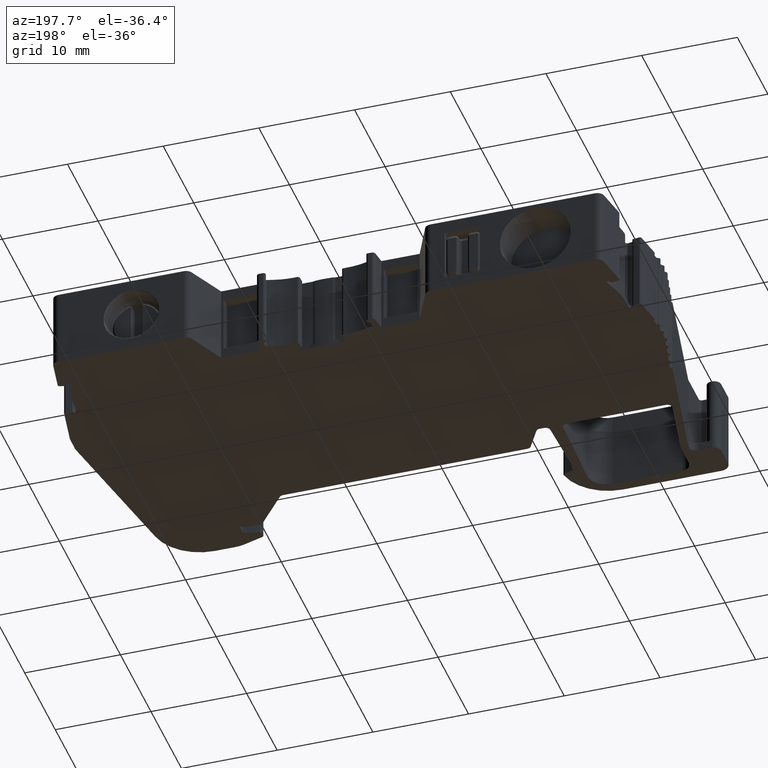
[diagram: clean part render]
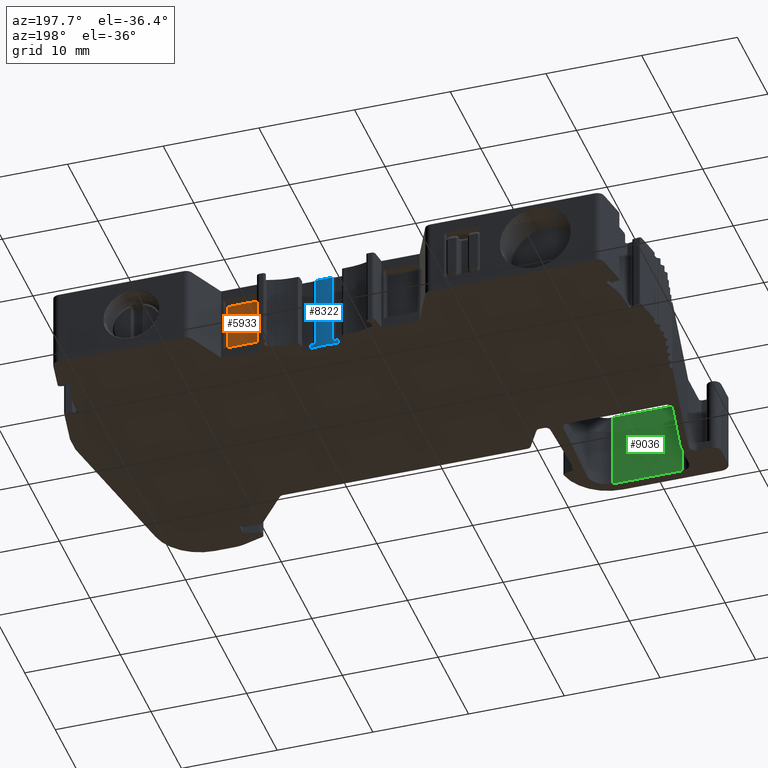
[diagram: same view with three faces highlighted in distinct colors, each labeled with its STEP entity id]
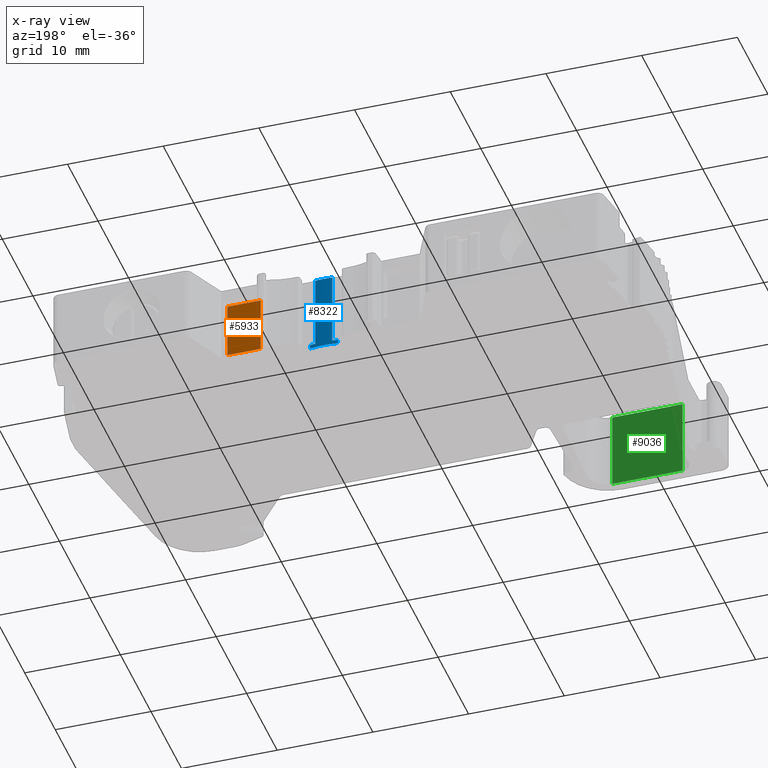
[diagram: x-ray of the same camera — body ghosted, the three highlighted faces saturated]
A machine part, auxiliary view with three faces highlighted in distinct colors.
The next image is the same camera in x-ray (body ghosted, the three faces saturated) — at least one of them is partly hidden behind the body in this view.
Their STEP definitions:

[orange] entity #5933 — the highlighted planar face has unit normal (0, 1, 0).
#602 = EDGE_CURVE ( 'NONE', #7787, #1837, #10320, .T. ) ;
#727 = CARTESIAN_POINT ( 'NONE',  ( -164.5061597319889870, 91.79790208512669381, 7.100000000000000533 ) ) ;
#1837 = VERTEX_POINT ( 'NONE', #3306 ) ;
#2060 = CARTESIAN_POINT ( 'NONE',  ( -168.0027234624745063, 91.79790208512669381, 0.6500000000000000222 ) ) ;
#2068 = VECTOR ( 'NONE', #9424, 1000.000000000000000 ) ;
#2297 = CARTESIAN_POINT ( 'NONE',  ( -164.5061597319889870, 91.79790208512669381, 0.6500000000000000222 ) ) ;
#2586 = LINE ( 'NONE', #4279, #11404 ) ;
#2995 = CARTESIAN_POINT ( 'NONE',  ( -164.5061597319889870, 91.79790208512669381, 1.100000000000000089 ) ) ;
#3090 = ORIENTED_EDGE ( 'NONE', *, *, #10309, .T. ) ;
#3207 = FACE_OUTER_BOUND ( 'NONE', #7749, .T. ) ;
#3306 = CARTESIAN_POINT ( 'NONE',  ( -168.0027234624745063, 91.79790208512669381, 7.100000000000000533 ) ) ;
#3486 = VECTOR ( 'NONE', #11828, 1000.000000000000000 ) ;
#4279 = CARTESIAN_POINT ( 'NONE',  ( -185.5847003385254652, 91.79790208512669381, 7.100000000000000533 ) ) ;
#5498 = AXIS2_PLACEMENT_3D ( 'NONE', #8521, #5859, #8578 ) ;
#5859 = DIRECTION ( 'NONE',  ( 0.0000000000000000000, 1.000000000000000000, 0.0000000000000000000 ) ) ;
#5933 = ADVANCED_FACE ( 'NONE', ( #3207 ), #6764, .T. ) ;
#5974 = DIRECTION ( 'NONE',  ( 0.0000000000000000000, 0.0000000000000000000, 1.000000000000000000 ) ) ;
#6439 = CARTESIAN_POINT ( 'NONE',  ( -168.0027234624745063, 91.79790208512669381, 1.100000000000000089 ) ) ;
#6764 = PLANE ( 'NONE',  #5498 ) ;
#7749 = EDGE_LOOP ( 'NONE', ( #9284, #3090, #10541, #11906 ) ) ;
#7787 = VERTEX_POINT ( 'NONE', #6439 ) ;
#7993 = VERTEX_POINT ( 'NONE', #2995 ) ;
#8521 = CARTESIAN_POINT ( 'NONE',  ( -185.5847003385254652, 91.79790208512669381, -34.26447960419150007 ) ) ;
#8578 = DIRECTION ( 'NONE',  ( 0.0000000000000000000, 0.0000000000000000000, 1.000000000000000000 ) ) ;
#9284 = ORIENTED_EDGE ( 'NONE', *, *, #602, .T. ) ;
#9358 = DIRECTION ( 'NONE',  ( 1.000000000000000000, 0.0000000000000000000, 0.0000000000000000000 ) ) ;
#9424 = DIRECTION ( 'NONE',  ( 0.0000000000000000000, 0.0000000000000000000, 1.000000000000000000 ) ) ;
#9713 = LINE ( 'NONE', #10789, #3486 ) ;
#9822 = VERTEX_POINT ( 'NONE', #727 ) ;
#10279 = EDGE_CURVE ( 'NONE', #7993, #7787, #9713, .T. ) ;
#10309 = EDGE_CURVE ( 'NONE', #1837, #9822, #2586, .T. ) ;
#10320 = LINE ( 'NONE', #2060, #2068 ) ;
#10541 = ORIENTED_EDGE ( 'NONE', *, *, #11325, .F. ) ;
#10789 = CARTESIAN_POINT ( 'NONE',  ( -185.5847003385254652, 91.79790208512669381, 1.100000000000000089 ) ) ;
#11325 = EDGE_CURVE ( 'NONE', #7993, #9822, #11420, .T. ) ;
#11404 = VECTOR ( 'NONE', #9358, 1000.000000000000000 ) ;
#11420 = LINE ( 'NONE', #2297, #11594 ) ;
#11594 = VECTOR ( 'NONE', #5974, 1000.000000000000000 ) ;
#11828 = DIRECTION ( 'NONE',  ( -1.000000000000000000, 0.0000000000000000000, 0.0000000000000000000 ) ) ;
#11906 = ORIENTED_EDGE ( 'NONE', *, *, #10279, .T. ) ;

[blue] entity #8322 — the highlighted cylindrical surface (partial cylindrical patch) has radius 9.8522 mm, axis along (0, 0, -1).
#45 = VECTOR ( 'NONE', #2304, 1000.000000000000000 ) ;
#98 = CIRCLE ( 'NONE', #8952, 9.852216748705789229 ) ;
#120 = CARTESIAN_POINT ( 'NONE',  ( -173.1697012188255087, 91.79790208512669381, 8.200000000000001066 ) ) ;
#370 = DIRECTION ( 'NONE',  ( -1.000000000000000000, 0.0000000000000000000, 0.0000000000000000000 ) ) ;
#709 = DIRECTION ( 'NONE',  ( 0.0000000000000000000, 0.0000000000000000000, 1.000000000000000000 ) ) ;
#1435 = CARTESIAN_POINT ( 'NONE',  ( -175.5012519154599886, 91.86719899619440355, 8.200000000000001066 ) ) ;
#1446 = EDGE_CURVE ( 'NONE', #3302, #9742, #8817, .T. ) ;
#1648 = VERTEX_POINT ( 'NONE', #11778 ) ;
#1726 = VERTEX_POINT ( 'NONE', #4833 ) ;
#2046 = CARTESIAN_POINT ( 'NONE',  ( -173.1697012198490029, 91.79790208512669381, 0.4000000000000000222 ) ) ;
#2073 = CARTESIAN_POINT ( 'NONE',  ( -174.6261107751925010, 82.05392722536839756, 8.200000000000001066 ) ) ;
#2184 = CARTESIAN_POINT ( 'NONE',  ( -174.6261107756345154, 82.05392722521280291, 0.4000000000000000222 ) ) ;
#2304 = DIRECTION ( 'NONE',  ( -0.0000000000000000000, -0.0000000000000000000, 1.000000000000000000 ) ) ;
#2565 = EDGE_CURVE ( 'NONE', #2780, #6665, #4591, .T. ) ;
#2780 = VERTEX_POINT ( 'NONE', #1435 ) ;
#2847 = EDGE_CURVE ( 'NONE', #1726, #3302, #98, .T. ) ;
#2912 = EDGE_CURVE ( 'NONE', #3104, #1726, #11888, .T. ) ;
#3019 = EDGE_LOOP ( 'NONE', ( #10953, #8754, #9652, #9977, #11393, #10880, #5777, #3334 ) ) ;
#3104 = VERTEX_POINT ( 'NONE', #2046 ) ;
#3105 = CARTESIAN_POINT ( 'NONE',  ( -176.0825203314199996, 91.79790208512669381, 0.4000000000000000222 ) ) ;
#3298 = AXIS2_PLACEMENT_3D ( 'NONE', #2184, #8636, #370 ) ;
#3302 = VERTEX_POINT ( 'NONE', #7384 ) ;
#3334 = ORIENTED_EDGE ( 'NONE', *, *, #4597, .T. ) ;
#3565 = LINE ( 'NONE', #3755, #4332 ) ;
#3687 = DIRECTION ( 'NONE',  ( 0.0000000000000000000, 0.0000000000000000000, -1.000000000000000000 ) ) ;
#3755 = CARTESIAN_POINT ( 'NONE',  ( -173.7509696364529930, 91.86719899633060038, 8.200000000000001066 ) ) ;
#3888 = CIRCLE ( 'NONE', #3298, 9.852216748773678034 ) ;
#4003 = DIRECTION ( 'NONE',  ( 1.000000000000000000, 0.0000000000000000000, 0.0000000000000000000 ) ) ;
#4179 = CARTESIAN_POINT ( 'NONE',  ( -176.0825203315594933, 91.79790208512669381, 8.200000000000001066 ) ) ;
#4275 = DIRECTION ( 'NONE',  ( 1.000000000000000000, 0.0000000000000000000, 0.0000000000000000000 ) ) ;
#4332 = VECTOR ( 'NONE', #3687, 1000.000000000000000 ) ;
#4591 = LINE ( 'NONE', #4652, #10677 ) ;
#4597 = EDGE_CURVE ( 'NONE', #10520, #1648, #3565, .T. ) ;
#4609 = AXIS2_PLACEMENT_3D ( 'NONE', #2073, #9609, #4003 ) ;
#4652 = CARTESIAN_POINT ( 'NONE',  ( -175.5012519154599886, 91.86719899619440355, 8.200000000000001066 ) ) ;
#4833 = CARTESIAN_POINT ( 'NONE',  ( -173.1697012188255087, 91.79790208512669381, 0.0000000000000000000 ) ) ;
#5276 = DIRECTION ( 'NONE',  ( 0.0000000000000000000, 0.0000000000000000000, -1.000000000000000000 ) ) ;
#5295 = VECTOR ( 'NONE', #5547, 1000.000000000000000 ) ;
#5453 = FACE_OUTER_BOUND ( 'NONE', #3019, .T. ) ;
#5547 = DIRECTION ( 'NONE',  ( 0.0000000000000000000, 0.0000000000000000000, -1.000000000000000000 ) ) ;
#5579 = CARTESIAN_POINT ( 'NONE',  ( -174.6261107751925010, 82.05392722536839756, 8.200000000000001066 ) ) ;
#5777 = ORIENTED_EDGE ( 'NONE', *, *, #8459, .F. ) ;
#6180 = CARTESIAN_POINT ( 'NONE',  ( -174.6261107756345154, 82.05392722521280291, 0.4000000000000000222 ) ) ;
#6665 = VERTEX_POINT ( 'NONE', #11136 ) ;
#7138 = DIRECTION ( 'NONE',  ( -1.000000000000000000, 0.0000000000000000000, 0.0000000000000000000 ) ) ;
#7301 = CIRCLE ( 'NONE', #4609, 9.852216748705789229 ) ;
#7384 = CARTESIAN_POINT ( 'NONE',  ( -176.0825203315594933, 91.79790208512669381, 0.0000000000000000000 ) ) ;
#7449 = CYLINDRICAL_SURFACE ( 'NONE', #9510, 9.852216748705789229 ) ;
#8233 = DIRECTION ( 'NONE',  ( 0.0000000000000000000, 0.0000000000000000000, -1.000000000000000000 ) ) ;
#8322 = ADVANCED_FACE ( 'NONE', ( #5453 ), #7449, .T. ) ;
#8353 = DIRECTION ( 'NONE',  ( -1.000000000000000000, 0.0000000000000000000, 0.0000000000000000000 ) ) ;
#8459 = EDGE_CURVE ( 'NONE', #10520, #2780, #7301, .T. ) ;
#8636 = DIRECTION ( 'NONE',  ( 0.0000000000000000000, 0.0000000000000000000, -1.000000000000000000 ) ) ;
#8754 = ORIENTED_EDGE ( 'NONE', *, *, #2912, .T. ) ;
#8817 = LINE ( 'NONE', #4179, #45 ) ;
#8952 = AXIS2_PLACEMENT_3D ( 'NONE', #9763, #709, #4275 ) ;
#9023 = CIRCLE ( 'NONE', #10754, 9.852216748773678034 ) ;
#9433 = EDGE_CURVE ( 'NONE', #1648, #3104, #9023, .T. ) ;
#9510 = AXIS2_PLACEMENT_3D ( 'NONE', #5579, #8233, #8353 ) ;
#9529 = CARTESIAN_POINT ( 'NONE',  ( -173.7509696364529930, 91.86719899633060038, 8.200000000000001066 ) ) ;
#9609 = DIRECTION ( 'NONE',  ( 0.0000000000000000000, 0.0000000000000000000, 1.000000000000000000 ) ) ;
#9652 = ORIENTED_EDGE ( 'NONE', *, *, #2847, .T. ) ;
#9742 = VERTEX_POINT ( 'NONE', #3105 ) ;
#9763 = CARTESIAN_POINT ( 'NONE',  ( -174.6261107751925010, 82.05392722536839756, 0.0000000000000000000 ) ) ;
#9977 = ORIENTED_EDGE ( 'NONE', *, *, #1446, .T. ) ;
#10017 = DIRECTION ( 'NONE',  ( 0.0000000000000000000, 0.0000000000000000000, -1.000000000000000000 ) ) ;
#10520 = VERTEX_POINT ( 'NONE', #9529 ) ;
#10677 = VECTOR ( 'NONE', #10017, 1000.000000000000000 ) ;
#10754 = AXIS2_PLACEMENT_3D ( 'NONE', #6180, #5276, #7138 ) ;
#10880 = ORIENTED_EDGE ( 'NONE', *, *, #2565, .F. ) ;
#10953 = ORIENTED_EDGE ( 'NONE', *, *, #9433, .T. ) ;
#11136 = CARTESIAN_POINT ( 'NONE',  ( -175.5012519154899735, 91.86719899614371343, 0.4000000000000000222 ) ) ;
#11324 = EDGE_CURVE ( 'NONE', #9742, #6665, #3888, .T. ) ;
#11393 = ORIENTED_EDGE ( 'NONE', *, *, #11324, .T. ) ;
#11778 = CARTESIAN_POINT ( 'NONE',  ( -173.7509696367129948, 91.86719899622690377, 0.4000000000000000222 ) ) ;
#11888 = LINE ( 'NONE', #120, #5295 ) ;

[green] entity #9036 — the highlighted planar face has unit normal (0, -1, 0).
#747 = AXIS2_PLACEMENT_3D ( 'NONE', #7089, #10772, #8182 ) ;
#837 = VECTOR ( 'NONE', #3604, 1000.000000000000000 ) ;
#1517 = VECTOR ( 'NONE', #7913, 1000.000000000000000 ) ;
#1876 = DIRECTION ( 'NONE',  ( 0.0000000000000000000, 0.0000000000000000000, 1.000000000000000000 ) ) ;
#2079 = CARTESIAN_POINT ( 'NONE',  ( -194.9258791766710033, 61.01255661556029963, 0.0000000000000000000 ) ) ;
#2614 = EDGE_CURVE ( 'NONE', #5414, #6140, #2786, .T. ) ;
#2642 = ORIENTED_EDGE ( 'NONE', *, *, #2614, .F. ) ;
#2698 = FACE_OUTER_BOUND ( 'NONE', #6128, .T. ) ;
#2786 = LINE ( 'NONE', #6463, #7810 ) ;
#3409 = PLANE ( 'NONE',  #747 ) ;
#3604 = DIRECTION ( 'NONE',  ( 0.0000000000000000000, 0.0000000000000000000, 1.000000000000000000 ) ) ;
#4234 = CARTESIAN_POINT ( 'NONE',  ( 0.0000000000000000000, 61.01255661556029963, 0.0000000000000000000 ) ) ;
#5038 = VERTEX_POINT ( 'NONE', #10171 ) ;
#5414 = VERTEX_POINT ( 'NONE', #2079 ) ;
#5539 = CARTESIAN_POINT ( 'NONE',  ( -202.2539418681870131, 61.01255661556029963, -9.599999999999999645 ) ) ;
#6128 = EDGE_LOOP ( 'NONE', ( #10973, #9203, #2642, #6167 ) ) ;
#6140 = VERTEX_POINT ( 'NONE', #6573 ) ;
#6167 = ORIENTED_EDGE ( 'NONE', *, *, #8579, .F. ) ;
#6463 = CARTESIAN_POINT ( 'NONE',  ( -194.9258791766710033, 61.01255661556029963, -9.599999999999999645 ) ) ;
#6573 = CARTESIAN_POINT ( 'NONE',  ( -194.9258791766710033, 61.01255661556029963, 8.200000000000001066 ) ) ;
#6697 = VERTEX_POINT ( 'NONE', #6782 ) ;
#6782 = CARTESIAN_POINT ( 'NONE',  ( -202.2539418681870131, 61.01255661556029963, 8.200000000000001066 ) ) ;
#7089 = CARTESIAN_POINT ( 'NONE',  ( 0.0000000000000000000, 61.01255661556029963, -9.599999999999999645 ) ) ;
#7771 = EDGE_CURVE ( 'NONE', #5038, #6697, #11818, .T. ) ;
#7810 = VECTOR ( 'NONE', #1876, 1000.000000000000000 ) ;
#7913 = DIRECTION ( 'NONE',  ( 1.000000000000000000, 0.0000000000000000000, 0.0000000000000000000 ) ) ;
#8087 = LINE ( 'NONE', #4234, #1517 ) ;
#8182 = DIRECTION ( 'NONE',  ( 0.0000000000000000000, 0.0000000000000000000, -1.000000000000000000 ) ) ;
#8579 = EDGE_CURVE ( 'NONE', #5038, #5414, #8087, .T. ) ;
#8712 = EDGE_CURVE ( 'NONE', #6697, #6140, #11840, .T. ) ;
#9033 = VECTOR ( 'NONE', #11154, 1000.000000000000000 ) ;
#9036 = ADVANCED_FACE ( 'NONE', ( #2698 ), #3409, .F. ) ;
#9203 = ORIENTED_EDGE ( 'NONE', *, *, #8712, .T. ) ;
#10171 = CARTESIAN_POINT ( 'NONE',  ( -202.2539418681870131, 61.01255661556029963, 0.0000000000000000000 ) ) ;
#10421 = CARTESIAN_POINT ( 'NONE',  ( 0.0000000000000000000, 61.01255661556029963, 8.200000000000001066 ) ) ;
#10772 = DIRECTION ( 'NONE',  ( 0.0000000000000000000, -1.000000000000000000, 0.0000000000000000000 ) ) ;
#10973 = ORIENTED_EDGE ( 'NONE', *, *, #7771, .T. ) ;
#11154 = DIRECTION ( 'NONE',  ( 1.000000000000000000, 0.0000000000000000000, 0.0000000000000000000 ) ) ;
#11818 = LINE ( 'NONE', #5539, #837 ) ;
#11840 = LINE ( 'NONE', #10421, #9033 ) ;